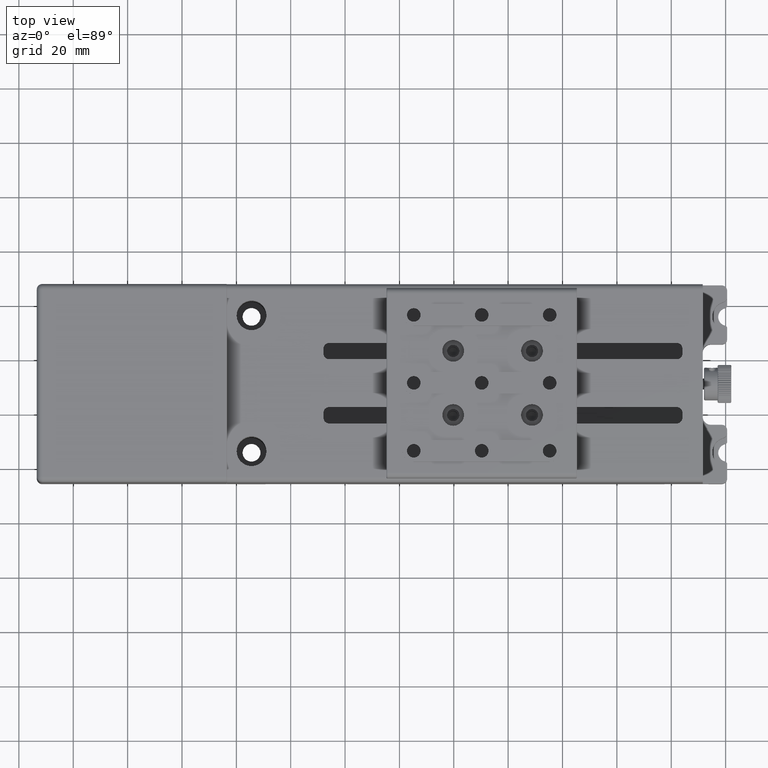
[diagram: clean part render]
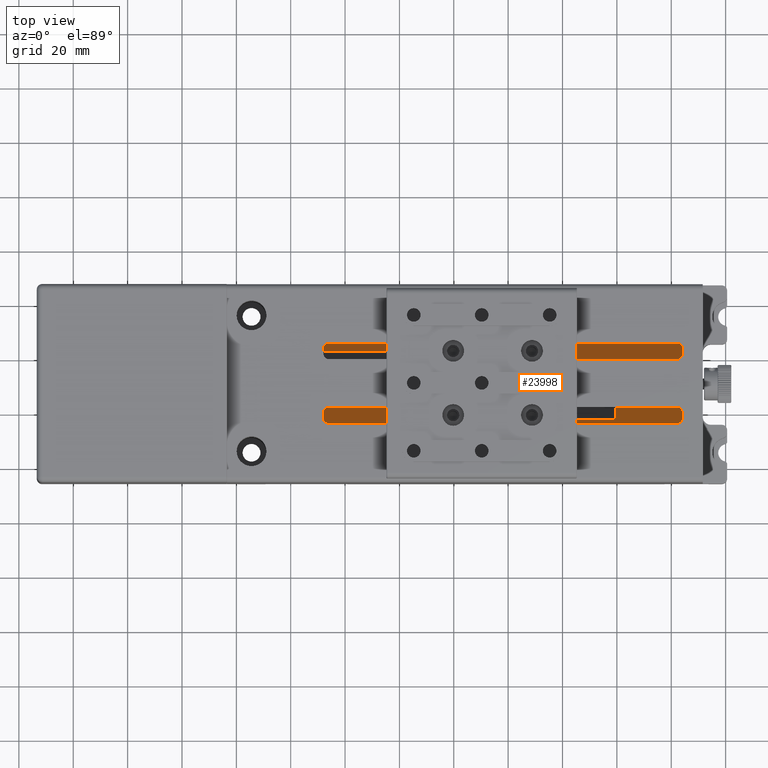
[diagram: same view with one face highlighted and labeled with its STEP entity id]
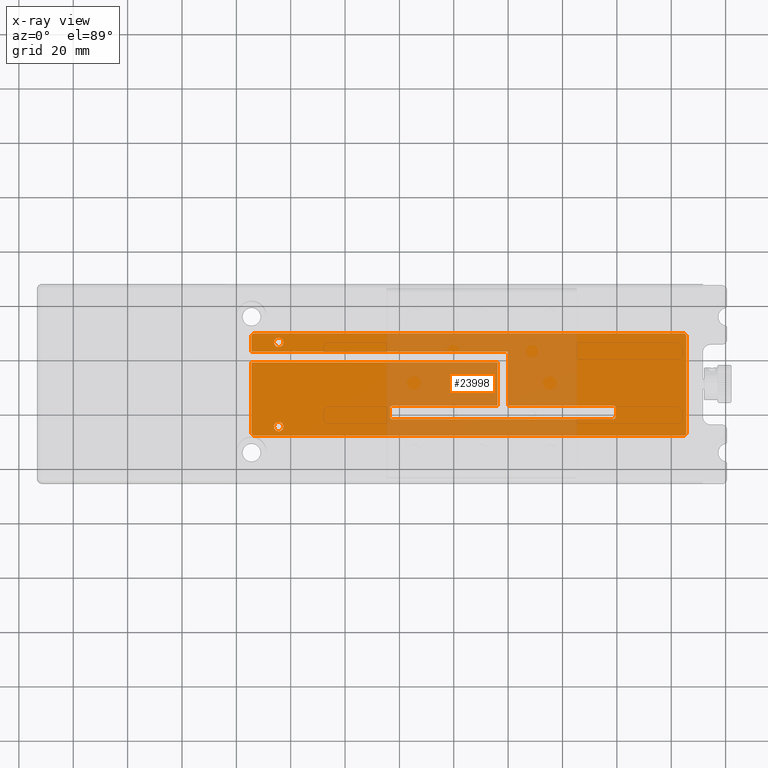
[diagram: x-ray of the same camera — body ghosted, the highlighted face saturated]
A machine part, top view. The second image highlights one B-rep face of the part: STEP entity #23998.
The next image is the same camera in x-ray: the body ghosted, the highlighted face saturated — about 38% of this face is hidden behind the body in this view.
In plain terms, the highlighted planar face has unit normal (0, 0, 1).
Its self-contained STEP definition (entity closure, byte-faithful):
#145 = VERTEX_POINT ( 'NONE', #29775 ) ;
#409 = VERTEX_POINT ( 'NONE', #42554 ) ;
#1548 = DIRECTION ( 'NONE',  ( 0.000000000000000000, 0.000000000000000000, 1.000000000000000000 ) ) ;
#1806 = VERTEX_POINT ( 'NONE', #64419 ) ;
#2052 = CARTESIAN_POINT ( 'NONE',  ( -74.42525998140239096, 8.830802549747209795, 3.000000000000000000 ) ) ;
#2352 = CARTESIAN_POINT ( 'NONE',  ( -74.42525998140239096, 3.230802549747184838, 3.000000000000000000 ) ) ;
#2701 = VERTEX_POINT ( 'NONE', #18706 ) ;
#2767 = VERTEX_POINT ( 'NONE', #5443 ) ;
#2970 = EDGE_CURVE ( 'NONE', #51125, #33615, #38042, .T. ) ;
#3217 = EDGE_CURVE ( 'NONE', #26033, #41737, #15458, .T. ) ;
#3316 = VERTEX_POINT ( 'NONE', #59129 ) ;
#4360 = CARTESIAN_POINT ( 'NONE',  ( 58.57474001859770141, -17.76919745025280051, 3.000000000000000000 ) ) ;
#4545 = VECTOR ( 'NONE', #41839, 1000.000000000000000 ) ;
#4774 = ORIENTED_EDGE ( 'NONE', *, *, #68483, .T. ) ;
#4790 = DIRECTION ( 'NONE',  ( 0.000000000000000000, 0.000000000000000000, 1.000000000000000000 ) ) ;
#4818 = VECTOR ( 'NONE', #14389, 1000.000000000000000 ) ;
#5053 = VERTEX_POINT ( 'NONE', #54115 ) ;
#5186 = CARTESIAN_POINT ( 'NONE',  ( -74.42525998140239096, 9.830802549747209795, 3.000000000000000000 ) ) ;
#5323 = VERTEX_POINT ( 'NONE', #51306 ) ;
#5443 = CARTESIAN_POINT ( 'NONE',  ( -66.12525998140229433, 6.530802549747209973, 3.000000000000000000 ) ) ;
#6617 = DIRECTION ( 'NONE',  ( -1.000000000000000000, -8.360113137237628665E-17, 0.000000000000000000 ) ) ;
#6883 = ORIENTED_EDGE ( 'NONE', *, *, #10498, .T. ) ;
#6939 = DIRECTION ( 'NONE',  ( 0.000000000000000000, 0.000000000000000000, 1.000000000000000000 ) ) ;
#7281 = VERTEX_POINT ( 'NONE', #39717 ) ;
#7302 = PLANE ( 'NONE',  #41036 ) ;
#7489 = CIRCLE ( 'NONE', #31861, 1.699999999999993072 ) ;
#7549 = ORIENTED_EDGE ( 'NONE', *, *, #3217, .F. ) ;
#7658 = CIRCLE ( 'NONE', #17625, 1.000000000000000888 ) ;
#7718 = CARTESIAN_POINT ( 'NONE',  ( 20.07474001859765167, 3.230802549747199937, 3.000000000000000000 ) ) ;
#7998 = DIRECTION ( 'NONE',  ( 1.000000000000000000, 0.000000000000000000, 0.000000000000000000 ) ) ;
#8133 = LINE ( 'NONE', #44226, #51055 ) ;
#8494 = DIRECTION ( 'NONE',  ( 0.000000000000000000, 0.000000000000000000, -1.000000000000000000 ) ) ;
#9250 = ORIENTED_EDGE ( 'NONE', *, *, #32671, .F. ) ;
#9435 = VERTEX_POINT ( 'NONE', #54697 ) ;
#10061 = DIRECTION ( 'NONE',  ( -1.000000000000000000, -8.360113137237628665E-17, 0.000000000000000000 ) ) ;
#10498 = EDGE_CURVE ( 'NONE', #67826, #3316, #16685, .T. ) ;
#10745 = DIRECTION ( 'NONE',  ( 0.000000000000000000, 1.000000000000000000, 0.000000000000000000 ) ) ;
#10800 = DIRECTION ( 'NONE',  ( 0.000000000000000000, 0.000000000000000000, -1.000000000000000000 ) ) ;
#10904 = EDGE_CURVE ( 'NONE', #9435, #58426, #47025, .T. ) ;
#11069 = CIRCLE ( 'NONE', #19957, 1.000000000000000888 ) ;
#11227 = VECTOR ( 'NONE', #61026, 1000.000000000000000 ) ;
#11510 = EDGE_CURVE ( 'NONE', #41737, #47602, #66772, .T. ) ;
#11981 = ORIENTED_EDGE ( 'NONE', *, *, #35279, .F. ) ;
#12037 = DIRECTION ( 'NONE',  ( 1.000000000000000000, 1.672022627447524747E-16, 0.000000000000000000 ) ) ;
#13631 = EDGE_CURVE ( 'NONE', #2767, #2701, #27061, .T. ) ;
#13647 = ORIENTED_EDGE ( 'NONE', *, *, #2970, .F. ) ;
#13676 = DIRECTION ( 'NONE',  ( -1.000000000000000000, 0.000000000000000000, 0.000000000000000000 ) ) ;
#13688 = DIRECTION ( 'NONE',  ( 0.000000000000000000, -1.000000000000000000, 0.000000000000000000 ) ) ;
#13788 = CIRCLE ( 'NONE', #41463, 1.000000000000000888 ) ;
#14011 = CARTESIAN_POINT ( 'NONE',  ( 20.07474001859765167, 3.230802549747199937, 3.000000000000000000 ) ) ;
#14389 = DIRECTION ( 'NONE',  ( 0.000000000000000000, -1.000000000000000000, 0.000000000000000000 ) ) ;
#14723 = DIRECTION ( 'NONE',  ( 1.000000000000000000, 0.000000000000000000, 0.000000000000000000 ) ) ;
#14810 = DIRECTION ( 'NONE',  ( 0.000000000000000000, 0.000000000000000000, 1.000000000000000000 ) ) ;
#15021 = CIRCLE ( 'NONE', #52653, 1.000000000000000888 ) ;
#15458 = LINE ( 'NONE', #46664, #62814 ) ;
#15759 = FACE_BOUND ( 'NONE', #36355, .T. ) ;
#15943 = VERTEX_POINT ( 'NONE', #34914 ) ;
#16067 = EDGE_CURVE ( 'NONE', #26222, #5053, #30171, .T. ) ;
#16474 = ORIENTED_EDGE ( 'NONE', *, *, #66444, .F. ) ;
#16685 = CIRCLE ( 'NONE', #21162, 1.000000000000000888 ) ;
#17539 = DIRECTION ( 'NONE',  ( 1.000000000000000000, 0.000000000000000000, 0.000000000000000000 ) ) ;
#17625 = AXIS2_PLACEMENT_3D ( 'NONE', #38871, #10800, #54148 ) ;
#17631 = CIRCLE ( 'NONE', #65279, 1.699999999999993072 ) ;
#18146 = VECTOR ( 'NONE', #6617, 1000.000000000000000 ) ;
#18706 = CARTESIAN_POINT ( 'NONE',  ( -62.72525998140229575, 6.530802549747209973, 3.000000000000000000 ) ) ;
#18716 = DIRECTION ( 'NONE',  ( 1.000000000000000000, 0.000000000000000000, 0.000000000000000000 ) ) ;
#19957 = AXIS2_PLACEMENT_3D ( 'NONE', #34319, #45059, #18716 ) ;
#20295 = ORIENTED_EDGE ( 'NONE', *, *, #30887, .F. ) ;
#20474 = CARTESIAN_POINT ( 'NONE',  ( 59.57474001859770141, -16.76919745025280051, 3.000000000000000000 ) ) ;
#20974 = CARTESIAN_POINT ( 'NONE',  ( 85.57474001859770851, -26.76919745025279695, 3.000000000000000000 ) ) ;
#20991 = VECTOR ( 'NONE', #10061, 1000.000000000000000 ) ;
#21162 = AXIS2_PLACEMENT_3D ( 'NONE', #36370, #4790, #32183 ) ;
#21296 = VECTOR ( 'NONE', #10745, 1000.000000000000000 ) ;
#21537 = AXIS2_PLACEMENT_3D ( 'NONE', #60356, #6939, #49251 ) ;
#22294 = CARTESIAN_POINT ( 'NONE',  ( -83.42525998140230570, -27.76919745025280051, 3.000000000000000000 ) ) ;
#23469 = CARTESIAN_POINT ( 'NONE',  ( 59.57474001859770141, -21.76919745025279695, 3.000000000000000000 ) ) ;
#23998 = ADVANCED_FACE ( 'NONE', ( #44087, #15759, #48940 ), #7302, .T. ) ;
#24251 = ORIENTED_EDGE ( 'NONE', *, *, #33300, .T. ) ;
#24831 = CARTESIAN_POINT ( 'NONE',  ( 84.57474001859770851, -27.76919745025280051, 3.000000000000000000 ) ) ;
#25478 = CARTESIAN_POINT ( 'NONE',  ( 58.57474001859770141, -20.76919745025280051, 3.000000000000000000 ) ) ;
#25523 = CARTESIAN_POINT ( 'NONE',  ( -64.42525998140230570, 6.530802549747209973, 3.000000000000000000 ) ) ;
#25810 = ORIENTED_EDGE ( 'NONE', *, *, #45812, .T. ) ;
#25994 = ORIENTED_EDGE ( 'NONE', *, *, #48468, .F. ) ;
#26033 = VERTEX_POINT ( 'NONE', #39747 ) ;
#26222 = VERTEX_POINT ( 'NONE', #31058 ) ;
#26541 = DIRECTION ( 'NONE',  ( 0.000000000000000000, 1.000000000000000000, 0.000000000000000000 ) ) ;
#26768 = CARTESIAN_POINT ( 'NONE',  ( 84.57474001859770851, 8.830802549747209795, 3.000000000000000000 ) ) ;
#27061 = CIRCLE ( 'NONE', #21537, 1.699999999999993072 ) ;
#27238 = CARTESIAN_POINT ( 'NONE',  ( -73.42525998140230570, 8.830802549747209795, 3.000000000000000000 ) ) ;
#27916 = VERTEX_POINT ( 'NONE', #24831 ) ;
#28117 = CARTESIAN_POINT ( 'NONE',  ( -153.4252599814024904, 26.03080254974719665, 3.000000000000000000 ) ) ;
#28245 = CARTESIAN_POINT ( 'NONE',  ( -74.42525998140239096, -26.76919745025279695, 3.000000000000000000 ) ) ;
#28733 = CARTESIAN_POINT ( 'NONE',  ( -73.42525998140230570, 9.830802549747209795, 3.000000000000000000 ) ) ;
#29555 = CARTESIAN_POINT ( 'NONE',  ( 58.57474001859770141, -21.76919745025279695, 3.000000000000000000 ) ) ;
#29775 = CARTESIAN_POINT ( 'NONE',  ( 16.07474001859770141, -0.7691974502527999524, 3.000000000000000000 ) ) ;
#30171 = CIRCLE ( 'NONE', #39011, 1.000000000000000888 ) ;
#30432 = CARTESIAN_POINT ( 'NONE',  ( 84.57474001859770851, -26.76919745025279695, 3.000000000000000000 ) ) ;
#30530 = DIRECTION ( 'NONE',  ( 0.000000000000000000, 1.000000000000000000, 0.000000000000000000 ) ) ;
#30887 = EDGE_CURVE ( 'NONE', #44417, #409, #17631, .T. ) ;
#31058 = CARTESIAN_POINT ( 'NONE',  ( 58.57474001859770141, -16.76919745025280051, 3.000000000000000000 ) ) ;
#31255 = ORIENTED_EDGE ( 'NONE', *, *, #16067, .T. ) ;
#31314 = DIRECTION ( 'NONE',  ( 1.000000000000000000, 0.000000000000000000, 0.000000000000000000 ) ) ;
#31692 = CARTESIAN_POINT ( 'NONE',  ( -22.42525998140230215, -16.76919745025280051, 3.000000000000000000 ) ) ;
#31861 = AXIS2_PLACEMENT_3D ( 'NONE', #56562, #34373, #7998 ) ;
#32183 = DIRECTION ( 'NONE',  ( 1.000000000000000000, 0.000000000000000000, 0.000000000000000000 ) ) ;
#32671 = EDGE_CURVE ( 'NONE', #15943, #5053, #61709, .T. ) ;
#32678 = EDGE_CURVE ( 'NONE', #51125, #5323, #11069, .T. ) ;
#32686 = DIRECTION ( 'NONE',  ( 1.000000000000000000, 0.000000000000000000, 0.000000000000000000 ) ) ;
#33300 = EDGE_CURVE ( 'NONE', #3316, #27916, #42422, .T. ) ;
#33615 = VERTEX_POINT ( 'NONE', #29555 ) ;
#33897 = VERTEX_POINT ( 'NONE', #2052 ) ;
#34104 = ORIENTED_EDGE ( 'NONE', *, *, #11510, .F. ) ;
#34319 = CARTESIAN_POINT ( 'NONE',  ( -22.42525998140230215, -20.76919745025280051, 3.000000000000000000 ) ) ;
#34373 = DIRECTION ( 'NONE',  ( 0.000000000000000000, 0.000000000000000000, 1.000000000000000000 ) ) ;
#34914 = CARTESIAN_POINT ( 'NONE',  ( 59.57474001859770141, -20.76919745025280051, 3.000000000000000000 ) ) ;
#34948 = DIRECTION ( 'NONE',  ( 1.000000000000000000, 0.000000000000000000, 0.000000000000000000 ) ) ;
#35279 = EDGE_CURVE ( 'NONE', #145, #1806, #8133, .T. ) ;
#35613 = VERTEX_POINT ( 'NONE', #31692 ) ;
#35724 = CARTESIAN_POINT ( 'NONE',  ( -74.42525998140239096, 9.830802549747209795, 3.000000000000000000 ) ) ;
#35823 = ORIENTED_EDGE ( 'NONE', *, *, #66523, .T. ) ;
#36073 = LINE ( 'NONE', #5186, #21296 ) ;
#36355 = EDGE_LOOP ( 'NONE', ( #52546, #16474 ) ) ;
#36370 = CARTESIAN_POINT ( 'NONE',  ( -73.42525998140230570, -26.76919745025279695, 3.000000000000000000 ) ) ;
#36408 = LINE ( 'NONE', #35724, #52180 ) ;
#36740 = VECTOR ( 'NONE', #13676, 1000.000000000000000 ) ;
#37394 = AXIS2_PLACEMENT_3D ( 'NONE', #27238, #1548, #17539 ) ;
#38042 = LINE ( 'NONE', #23469, #61720 ) ;
#38541 = EDGE_CURVE ( 'NONE', #48825, #145, #43270, .T. ) ;
#38659 = DIRECTION ( 'NONE',  ( -1.000000000000000000, 0.000000000000000000, 0.000000000000000000 ) ) ;
#38740 = CARTESIAN_POINT ( 'NONE',  ( -153.4252599814024904, -0.7691974502528240443, 3.000000000000000000 ) ) ;
#38871 = CARTESIAN_POINT ( 'NONE',  ( -22.42525998140230215, -17.76919745025280051, 3.000000000000000000 ) ) ;
#39011 = AXIS2_PLACEMENT_3D ( 'NONE', #4360, #57102, #62316 ) ;
#39329 = CIRCLE ( 'NONE', #43796, 1.000000000000000888 ) ;
#39717 = CARTESIAN_POINT ( 'NONE',  ( -23.42525998140234833, -17.76919745025280051, 3.000000000000000000 ) ) ;
#39723 = LINE ( 'NONE', #45270, #4818 ) ;
#39747 = CARTESIAN_POINT ( 'NONE',  ( 20.07474001859765167, -16.76919745025280051, 3.000000000000000000 ) ) ;
#40447 = CARTESIAN_POINT ( 'NONE',  ( 84.57474001859770851, 9.830802549747209795, 3.000000000000000000 ) ) ;
#41036 = AXIS2_PLACEMENT_3D ( 'NONE', #28117, #68151, #65256 ) ;
#41463 = AXIS2_PLACEMENT_3D ( 'NONE', #25478, #8494, #14723 ) ;
#41536 = CARTESIAN_POINT ( 'NONE',  ( -62.72525998140229575, -24.46919745025279980, 3.000000000000000000 ) ) ;
#41719 = CARTESIAN_POINT ( 'NONE',  ( -64.42525998140230570, -24.46919745025279980, 3.000000000000000000 ) ) ;
#41737 = VERTEX_POINT ( 'NONE', #7718 ) ;
#41839 = DIRECTION ( 'NONE',  ( 0.000000000000000000, -1.000000000000000000, 0.000000000000000000 ) ) ;
#42378 = CARTESIAN_POINT ( 'NONE',  ( -22.42525998140230215, -21.76919745025279695, 3.000000000000000000 ) ) ;
#42422 = LINE ( 'NONE', #22294, #51000 ) ;
#42554 = CARTESIAN_POINT ( 'NONE',  ( -66.12525998140229433, -24.46919745025279980, 3.000000000000000000 ) ) ;
#43059 = LINE ( 'NONE', #54154, #18146 ) ;
#43264 = ORIENTED_EDGE ( 'NONE', *, *, #47368, .F. ) ;
#43270 = LINE ( 'NONE', #38740, #50342 ) ;
#43615 = EDGE_LOOP ( 'NONE', ( #24251, #59476, #58067, #66885, #35823, #4774, #43264, #34104, #7549, #46685, #31255, #9250, #62815, #13647, #68412, #43677, #25810, #66612, #11981, #46542, #25994, #6883 ) ) ;
#43677 = ORIENTED_EDGE ( 'NONE', *, *, #50718, .F. ) ;
#43796 = AXIS2_PLACEMENT_3D ( 'NONE', #26768, #63561, #58343 ) ;
#44087 = FACE_BOUND ( 'NONE', #53412, .T. ) ;
#44112 = EDGE_CURVE ( 'NONE', #1806, #35613, #57587, .T. ) ;
#44226 = CARTESIAN_POINT ( 'NONE',  ( 16.07474001859770141, -16.76919745025280051, 3.000000000000000000 ) ) ;
#44417 = VERTEX_POINT ( 'NONE', #41536 ) ;
#45059 = DIRECTION ( 'NONE',  ( 0.000000000000000000, 0.000000000000000000, -1.000000000000000000 ) ) ;
#45270 = CARTESIAN_POINT ( 'NONE',  ( -23.42525998140234833, -16.76919745025280051, 3.000000000000000000 ) ) ;
#45812 = EDGE_CURVE ( 'NONE', #7281, #35613, #7658, .T. ) ;
#46542 = ORIENTED_EDGE ( 'NONE', *, *, #38541, .F. ) ;
#46664 = CARTESIAN_POINT ( 'NONE',  ( 20.07474001859765167, -16.76919745025280051, 3.000000000000000000 ) ) ;
#46685 = ORIENTED_EDGE ( 'NONE', *, *, #51318, .F. ) ;
#47025 = LINE ( 'NONE', #47709, #4545 ) ;
#47368 = EDGE_CURVE ( 'NONE', #47602, #33897, #36408, .T. ) ;
#47602 = VERTEX_POINT ( 'NONE', #2352 ) ;
#47709 = CARTESIAN_POINT ( 'NONE',  ( 85.57474001859770851, -27.76919745025280051, 3.000000000000000000 ) ) ;
#48468 = EDGE_CURVE ( 'NONE', #67826, #48825, #36073, .T. ) ;
#48825 = VERTEX_POINT ( 'NONE', #57158 ) ;
#48940 = FACE_OUTER_BOUND ( 'NONE', #43615, .T. ) ;
#49251 = DIRECTION ( 'NONE',  ( 1.000000000000000000, 0.000000000000000000, 0.000000000000000000 ) ) ;
#50342 = VECTOR ( 'NONE', #54359, 1000.000000000000000 ) ;
#50630 = VECTOR ( 'NONE', #38659, 1000.000000000000000 ) ;
#50718 = EDGE_CURVE ( 'NONE', #7281, #5323, #39723, .T. ) ;
#51000 = VECTOR ( 'NONE', #32686, 1000.000000000000000 ) ;
#51055 = VECTOR ( 'NONE', #13688, 1000.000000000000000 ) ;
#51125 = VERTEX_POINT ( 'NONE', #42378 ) ;
#51306 = CARTESIAN_POINT ( 'NONE',  ( -23.42525998140234833, -20.76919745025280051, 3.000000000000000000 ) ) ;
#51318 = EDGE_CURVE ( 'NONE', #26222, #26033, #43059, .T. ) ;
#52180 = VECTOR ( 'NONE', #30530, 1000.000000000000000 ) ;
#52409 = EDGE_CURVE ( 'NONE', #9435, #66274, #39329, .T. ) ;
#52546 = ORIENTED_EDGE ( 'NONE', *, *, #13631, .F. ) ;
#52653 = AXIS2_PLACEMENT_3D ( 'NONE', #30432, #14810, #34948 ) ;
#53412 = EDGE_LOOP ( 'NONE', ( #60694, #20295 ) ) ;
#53927 = CARTESIAN_POINT ( 'NONE',  ( -83.42525998140230570, 9.830802549747209795, 3.000000000000000000 ) ) ;
#54115 = CARTESIAN_POINT ( 'NONE',  ( 59.57474001859770141, -17.76919745025280051, 3.000000000000000000 ) ) ;
#54148 = DIRECTION ( 'NONE',  ( 1.000000000000000000, 0.000000000000000000, 0.000000000000000000 ) ) ;
#54154 = CARTESIAN_POINT ( 'NONE',  ( 59.57474001859770141, -16.76919745025280051, 3.000000000000000000 ) ) ;
#54359 = DIRECTION ( 'NONE',  ( 1.000000000000000000, 1.394752543498939760E-16, 0.000000000000000000 ) ) ;
#54697 = CARTESIAN_POINT ( 'NONE',  ( 85.57474001859770851, 8.830802549747209795, 3.000000000000000000 ) ) ;
#56186 = AXIS2_PLACEMENT_3D ( 'NONE', #25523, #57088, #68547 ) ;
#56562 = CARTESIAN_POINT ( 'NONE',  ( -64.42525998140230570, -24.46919745025279980, 3.000000000000000000 ) ) ;
#57088 = DIRECTION ( 'NONE',  ( 0.000000000000000000, 0.000000000000000000, 1.000000000000000000 ) ) ;
#57102 = DIRECTION ( 'NONE',  ( 0.000000000000000000, 0.000000000000000000, -1.000000000000000000 ) ) ;
#57158 = CARTESIAN_POINT ( 'NONE',  ( -74.42525998140239096, -0.7691974502528130531, 3.000000000000000000 ) ) ;
#57587 = LINE ( 'NONE', #20474, #20991 ) ;
#58067 = ORIENTED_EDGE ( 'NONE', *, *, #10904, .F. ) ;
#58211 = EDGE_CURVE ( 'NONE', #15943, #33615, #13788, .T. ) ;
#58343 = DIRECTION ( 'NONE',  ( 1.000000000000000000, 0.000000000000000000, 0.000000000000000000 ) ) ;
#58426 = VERTEX_POINT ( 'NONE', #20974 ) ;
#58795 = LINE ( 'NONE', #53927, #50630 ) ;
#59001 = EDGE_CURVE ( 'NONE', #27916, #58426, #15021, .T. ) ;
#59129 = CARTESIAN_POINT ( 'NONE',  ( -73.42525998140230570, -27.76919745025280051, 3.000000000000000000 ) ) ;
#59476 = ORIENTED_EDGE ( 'NONE', *, *, #59001, .T. ) ;
#60356 = CARTESIAN_POINT ( 'NONE',  ( -64.42525998140230570, 6.530802549747209973, 3.000000000000000000 ) ) ;
#60694 = ORIENTED_EDGE ( 'NONE', *, *, #62189, .F. ) ;
#61026 = DIRECTION ( 'NONE',  ( 0.000000000000000000, 1.000000000000000000, 0.000000000000000000 ) ) ;
#61363 = CARTESIAN_POINT ( 'NONE',  ( 59.57474001859770141, -16.76919745025280051, 3.000000000000000000 ) ) ;
#61709 = LINE ( 'NONE', #61363, #11227 ) ;
#61720 = VECTOR ( 'NONE', #12037, 1000.000000000000000 ) ;
#61730 = CIRCLE ( 'NONE', #56186, 1.699999999999993072 ) ;
#62189 = EDGE_CURVE ( 'NONE', #409, #44417, #7489, .T. ) ;
#62316 = DIRECTION ( 'NONE',  ( 1.000000000000000000, 0.000000000000000000, 0.000000000000000000 ) ) ;
#62457 = VERTEX_POINT ( 'NONE', #28733 ) ;
#62814 = VECTOR ( 'NONE', #26541, 1000.000000000000000 ) ;
#62815 = ORIENTED_EDGE ( 'NONE', *, *, #58211, .T. ) ;
#62893 = DIRECTION ( 'NONE',  ( 0.000000000000000000, 0.000000000000000000, 1.000000000000000000 ) ) ;
#63561 = DIRECTION ( 'NONE',  ( 0.000000000000000000, 0.000000000000000000, 1.000000000000000000 ) ) ;
#64419 = CARTESIAN_POINT ( 'NONE',  ( 16.07474001859770141, -16.76919745025280051, 3.000000000000000000 ) ) ;
#65256 = DIRECTION ( 'NONE',  ( 1.000000000000000000, 0.000000000000000000, 0.000000000000000000 ) ) ;
#65279 = AXIS2_PLACEMENT_3D ( 'NONE', #41719, #62893, #31314 ) ;
#66274 = VERTEX_POINT ( 'NONE', #40447 ) ;
#66444 = EDGE_CURVE ( 'NONE', #2701, #2767, #61730, .T. ) ;
#66523 = EDGE_CURVE ( 'NONE', #66274, #62457, #58795, .T. ) ;
#66612 = ORIENTED_EDGE ( 'NONE', *, *, #44112, .F. ) ;
#66772 = LINE ( 'NONE', #14011, #36740 ) ;
#66885 = ORIENTED_EDGE ( 'NONE', *, *, #52409, .T. ) ;
#67340 = CIRCLE ( 'NONE', #37394, 1.000000000000000888 ) ;
#67826 = VERTEX_POINT ( 'NONE', #28245 ) ;
#68151 = DIRECTION ( 'NONE',  ( 0.000000000000000000, 0.000000000000000000, 1.000000000000000000 ) ) ;
#68412 = ORIENTED_EDGE ( 'NONE', *, *, #32678, .T. ) ;
#68483 = EDGE_CURVE ( 'NONE', #62457, #33897, #67340, .T. ) ;
#68547 = DIRECTION ( 'NONE',  ( 1.000000000000000000, 0.000000000000000000, 0.000000000000000000 ) ) ;